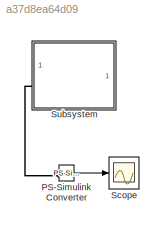
MODEL slx_a37d8ea64d09
KIND model
CONFIG AbsTol = auto
CONFIG EnableMultiTasking = off
CONFIG FixedStep = auto
CONFIG MaxStep = auto
CONFIG MinStep = auto
CONFIG RelTol = 1e-3
CONFIG SampleTimeConstraint = Unconstrained
CONFIG SolverName = VariableStepAuto
CONFIG StartTime = 0.0
CONFIG StopTime = 10
BLOCK [Reference] PS-Simulink Converter  REF=nesl_utility/PS-Simulink
Converter
  SourceBlock = nesl_utility/PS-Simulink\nConverter
  SourceType = PS-Simulink\nConverter
BLOCK [Scope] Scope
  Floating = off
  NumInputPorts = 1
  ScopeSpecificationString = Simulink.scopes.TimeScopeBlockCfg('CurrentConfiguration', extmgr.ConfigurationSet(extmgr.Configuration('Core','General UI',true),extmgr.Configuration('Core','Source UI',true),extmgr.Configuration('Sources','WiredSimulink',true),extmgr.Configuration('Visuals','Time Domain',true,'SerializedDisplays',{struct('MinYLimReal','-171.94598','MaxYLimReal','1541.39685','YLabelReal','','MinYLimMag',' 0.00000'...<+1532ch>
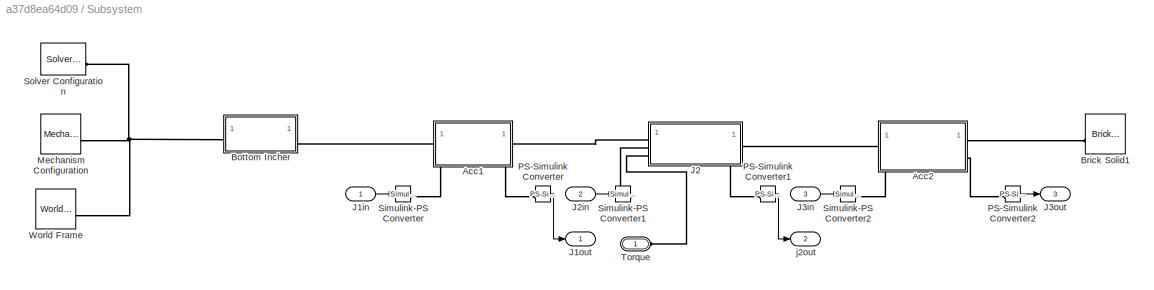
BLOCK [SubSystem] Subsystem
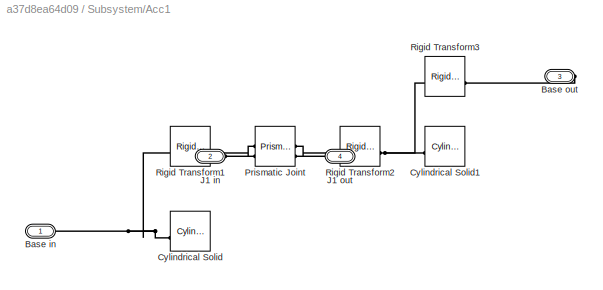
BLOCK [SubSystem] Subsystem/Acc1
BLOCK [PMIOPort] Subsystem/Acc1/Base in
  Side = Left
BLOCK [PMIOPort] Subsystem/Acc1/Base out
  Port = 3
  Side = Right
BLOCK [Reference] Subsystem/Acc1/Cylindrical Solid  REF=sm_lib/Body Elements/Cylindrical Solid
  NameLocation = top
  SourceBlock = sm_lib/Body Elements/Cylindrical Solid
  SourceType = Cylindrical Solid
BLOCK [Reference] Subsystem/Acc1/Cylindrical Solid1  REF=sm_lib/Body Elements/Cylindrical Solid
  NameLocation = top
  SourceBlock = sm_lib/Body Elements/Cylindrical Solid
  SourceType = Cylindrical Solid
BLOCK [PMIOPort] Subsystem/Acc1/J1 in
  Port = 2
  Side = Left
BLOCK [PMIOPort] Subsystem/Acc1/J1 out
  Port = 4
  Side = Right
BLOCK [Reference] Subsystem/Acc1/Prismatic Joint  REF=sm_lib/Joints/Prismatic
Joint
  SourceBlock = sm_lib/Joints/Prismatic\nJoint
  SourceType = Prismatic\nJoint
BLOCK [Reference] Subsystem/Acc1/Rigid Transform1  REF=sm_lib/Frames and
Transforms/Rigid
Transform
  SourceBlock = sm_lib/Frames and\nTransforms/Rigid\nTransform
  SourceType = Rigid\nTransform
BLOCK [Reference] Subsystem/Acc1/Rigid Transform2  REF=sm_lib/Frames and
Transforms/Rigid
Transform
  SourceBlock = sm_lib/Frames and\nTransforms/Rigid\nTransform
  SourceType = Rigid\nTransform
BLOCK [Reference] Subsystem/Acc1/Rigid Transform3  REF=sm_lib/Frames and
Transforms/Rigid
Transform
  SourceBlock = sm_lib/Frames and\nTransforms/Rigid\nTransform
  SourceType = Rigid\nTransform
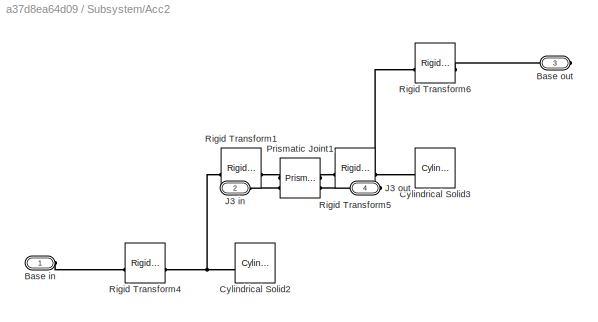
BLOCK [SubSystem] Subsystem/Acc2
BLOCK [PMIOPort] Subsystem/Acc2/Base in
  Side = Left
BLOCK [PMIOPort] Subsystem/Acc2/Base out
  Port = 3
  Side = Right
BLOCK [Reference] Subsystem/Acc2/Cylindrical Solid2  REF=sm_lib/Body Elements/Cylindrical Solid
  NameLocation = top
  SourceBlock = sm_lib/Body Elements/Cylindrical Solid
  SourceType = Cylindrical Solid
BLOCK [Reference] Subsystem/Acc2/Cylindrical Solid3  REF=sm_lib/Body Elements/Cylindrical Solid
  NameLocation = top
  SourceBlock = sm_lib/Body Elements/Cylindrical Solid
  SourceType = Cylindrical Solid
BLOCK [PMIOPort] Subsystem/Acc2/J3 in
  Port = 2
  Side = Left
BLOCK [PMIOPort] Subsystem/Acc2/J3 out
  Port = 4
  Side = Right
BLOCK [Reference] Subsystem/Acc2/Prismatic Joint1  REF=sm_lib/Joints/Prismatic
Joint
  SourceBlock = sm_lib/Joints/Prismatic\nJoint
  SourceType = Prismatic\nJoint
BLOCK [Reference] Subsystem/Acc2/Rigid Transform1  REF=sm_lib/Frames and
Transforms/Rigid
Transform
  SourceBlock = sm_lib/Frames and\nTransforms/Rigid\nTransform
  SourceType = Rigid\nTransform
BLOCK [Reference] Subsystem/Acc2/Rigid Transform4  REF=sm_lib/Frames and
Transforms/Rigid
Transform
  SourceBlock = sm_lib/Frames and\nTransforms/Rigid\nTransform
  SourceType = Rigid\nTransform
BLOCK [Reference] Subsystem/Acc2/Rigid Transform5  REF=sm_lib/Frames and
Transforms/Rigid
Transform
  SourceBlock = sm_lib/Frames and\nTransforms/Rigid\nTransform
  SourceType = Rigid\nTransform
BLOCK [Reference] Subsystem/Acc2/Rigid Transform6  REF=sm_lib/Frames and
Transforms/Rigid
Transform
  SourceBlock = sm_lib/Frames and\nTransforms/Rigid\nTransform
  SourceType = Rigid\nTransform
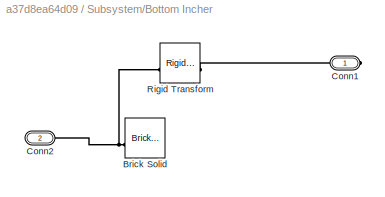
BLOCK [SubSystem] Subsystem/Bottom Incher
BLOCK [Reference] Subsystem/Bottom Incher/Brick Solid  REF=sm_lib/Body Elements/Brick Solid
  NameLocation = top
  SourceBlock = sm_lib/Body Elements/Brick Solid
  SourceType = Brick Solid
BLOCK [PMIOPort] Subsystem/Bottom Incher/Conn1
  Side = Right
BLOCK [PMIOPort] Subsystem/Bottom Incher/Conn2
  Port = 2
  Side = Left
BLOCK [Reference] Subsystem/Bottom Incher/Rigid Transform  REF=sm_lib/Frames and
Transforms/Rigid
Transform
  SourceBlock = sm_lib/Frames and\nTransforms/Rigid\nTransform
  SourceType = Rigid\nTransform
BLOCK [Reference] Subsystem/Brick Solid1  REF=sm_lib/Body Elements/Brick Solid
  NameLocation = top
  SourceBlock = sm_lib/Body Elements/Brick Solid
  SourceType = Brick Solid
BLOCK [Inport] Subsystem/J1in
BLOCK [Outport] Subsystem/J1out
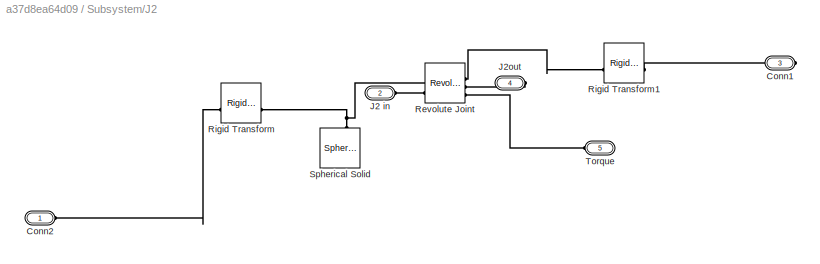
BLOCK [SubSystem] Subsystem/J2
BLOCK [PMIOPort] Subsystem/J2/Conn1
  Port = 3
  Side = Right
BLOCK [PMIOPort] Subsystem/J2/Conn2
  Side = Left
BLOCK [PMIOPort] Subsystem/J2/J2 in
  Port = 2
  Side = Left
BLOCK [PMIOPort] Subsystem/J2/J2out
  NameLocation = top
  Port = 4
  Side = Right
BLOCK [Reference] Subsystem/J2/Revolute Joint  REF=sm_lib/Joints/Revolute Joint
  SourceBlock = sm_lib/Joints/Revolute Joint
  SourceType = Revolute Joint
BLOCK [Reference] Subsystem/J2/Rigid Transform  REF=sm_lib/Frames and
Transforms/Rigid
Transform
  SourceBlock = sm_lib/Frames and\nTransforms/Rigid\nTransform
  SourceType = Rigid\nTransform
BLOCK [Reference] Subsystem/J2/Rigid Transform1  REF=sm_lib/Frames and
Transforms/Rigid
Transform
  SourceBlock = sm_lib/Frames and\nTransforms/Rigid\nTransform
  SourceType = Rigid\nTransform
BLOCK [Reference] Subsystem/J2/Spherical Solid  REF=sm_lib/Body Elements/Spherical Solid
  NameLocation = right
  SourceBlock = sm_lib/Body Elements/Spherical Solid
  SourceType = Spherical Solid
BLOCK [PMIOPort] Subsystem/J2/Torque
  NameLocation = top
  Port = 5
  Side = Left
BLOCK [Inport] Subsystem/J2in
  Port = 2
BLOCK [Inport] Subsystem/J3in
  Port = 3
BLOCK [Outport] Subsystem/J3out
  Port = 3
BLOCK [Reference] Subsystem/Mechanism Configuration  REF=sm_lib/Utilities/Mechanism
Configuration
  SourceBlock = sm_lib/Utilities/Mechanism\nConfiguration
  SourceType = Mechanism\nConfiguration
BLOCK [Reference] Subsystem/PS-Simulink Converter  REF=nesl_utility/PS-Simulink
Converter
  SourceBlock = nesl_utility/PS-Simulink\nConverter
  SourceType = PS-Simulink\nConverter
BLOCK [Reference] Subsystem/PS-Simulink Converter1  REF=nesl_utility/PS-Simulink
Converter
  SourceBlock = nesl_utility/PS-Simulink\nConverter
  SourceType = PS-Simulink\nConverter
BLOCK [Reference] Subsystem/PS-Simulink Converter2  REF=nesl_utility/PS-Simulink
Converter
  SourceBlock = nesl_utility/PS-Simulink\nConverter
  SourceType = PS-Simulink\nConverter
BLOCK [Reference] Subsystem/Simulink-PS Converter  REF=nesl_utility/Simulink-PS
Converter
  SourceBlock = nesl_utility/Simulink-PS\nConverter
  SourceType = Simulink-PS\nConverter
BLOCK [Reference] Subsystem/Simulink-PS Converter1  REF=nesl_utility/Simulink-PS
Converter
  SourceBlock = nesl_utility/Simulink-PS\nConverter
  SourceType = Simulink-PS\nConverter
BLOCK [Reference] Subsystem/Simulink-PS Converter2  REF=nesl_utility/Simulink-PS
Converter
  SourceBlock = nesl_utility/Simulink-PS\nConverter
  SourceType = Simulink-PS\nConverter
BLOCK [Reference] Subsystem/Solver Configuration  REF=nesl_utility/Solver
Configuration
  SourceBlock = nesl_utility/Solver\nConfiguration
  SourceType = Solver\nConfiguration
BLOCK [PMIOPort] Subsystem/Torque
  Side = Left
BLOCK [Reference] Subsystem/World Frame  REF=sm_lib/Frames and
Transforms/World Frame
  SourceBlock = sm_lib/Frames and\nTransforms/World Frame
  SourceType = World Frame
BLOCK [Outport] Subsystem/j2out
  Port = 2
LINE PS-Simulink Converter:1 -> Scope:1
LINE Subsystem/J1in:1 -> Subsystem/Simulink-PS Converter:1
LINE Subsystem/J2in:1 -> Subsystem/Simulink-PS Converter1:1
LINE Subsystem/J3in:1 -> Subsystem/Simulink-PS Converter2:1
LINE Subsystem/PS-Simulink Converter1:1 -> Subsystem/j2out:1
LINE Subsystem/PS-Simulink Converter2:1 -> Subsystem/J3out:1
LINE Subsystem/PS-Simulink Converter:1 -> Subsystem/J1out:1
PLINE PS-Simulink Converter:LConn1 -- Subsystem:LConn1
PNET net1: Subsystem/Acc1/Base in:RConn1 -- Subsystem/Acc1/Cylindrical Solid:RConn1 -- Subsystem/Acc1/Rigid Transform1:LConn1
PLINE Subsystem/Acc1/Base out:RConn1 -- Subsystem/Acc1/Rigid Transform3:RConn1
PNET net2: Subsystem/Acc1/Cylindrical Solid1:RConn1 -- Subsystem/Acc1/Rigid Transform2:RConn1 -- Subsystem/Acc1/Rigid Transform3:LConn1
PLINE Subsystem/Acc1/J1 in:RConn1 -- Subsystem/Acc1/Prismatic Joint:LConn2
PLINE Subsystem/Acc1/J1 out:RConn1 -- Subsystem/Acc1/Prismatic Joint:RConn2
PLINE Subsystem/Acc1/Prismatic Joint:LConn1 -- Subsystem/Acc1/Rigid Transform1:RConn1
PLINE Subsystem/Acc1/Prismatic Joint:RConn1 -- Subsystem/Acc1/Rigid Transform2:LConn1
PLINE Subsystem/Acc1:LConn1 -- Subsystem/Bottom Incher:RConn1
PLINE Subsystem/Acc1:LConn2 -- Subsystem/Simulink-PS Converter:RConn1
PLINE Subsystem/Acc1:RConn1 -- Subsystem/J2:LConn1
PLINE Subsystem/Acc1:RConn2 -- Subsystem/PS-Simulink Converter:LConn1
PLINE Subsystem/Acc2/Base in:RConn1 -- Subsystem/Acc2/Rigid Transform4:LConn1
PLINE Subsystem/Acc2/Base out:RConn1 -- Subsystem/Acc2/Rigid Transform6:RConn1
PNET net3: Subsystem/Acc2/Cylindrical Solid2:RConn1 -- Subsystem/Acc2/Rigid Transform1:LConn1 -- Subsystem/Acc2/Rigid Transform4:RConn1
PNET net4: Subsystem/Acc2/Cylindrical Solid3:RConn1 -- Subsystem/Acc2/Rigid Transform5:RConn1 -- Subsystem/Acc2/Rigid Transform6:LConn1
PLINE Subsystem/Acc2/J3 in:RConn1 -- Subsystem/Acc2/Prismatic Joint1:LConn2
PLINE Subsystem/Acc2/J3 out:RConn1 -- Subsystem/Acc2/Prismatic Joint1:RConn2
PLINE Subsystem/Acc2/Prismatic Joint1:LConn1 -- Subsystem/Acc2/Rigid Transform1:RConn1
PLINE Subsystem/Acc2/Prismatic Joint1:RConn1 -- Subsystem/Acc2/Rigid Transform5:LConn1
PLINE Subsystem/Acc2:LConn1 -- Subsystem/J2:RConn1
PLINE Subsystem/Acc2:LConn2 -- Subsystem/Simulink-PS Converter2:RConn1
PLINE Subsystem/Acc2:RConn1 -- Subsystem/Brick Solid1:RConn1
PLINE Subsystem/Acc2:RConn2 -- Subsystem/PS-Simulink Converter2:LConn1
PNET net5: Subsystem/Bottom Incher/Brick Solid:RConn1 -- Subsystem/Bottom Incher/Conn2:RConn1 -- Subsystem/Bottom Incher/Rigid Transform:LConn1
PLINE Subsystem/Bottom Incher/Conn1:RConn1 -- Subsystem/Bottom Incher/Rigid Transform:RConn1
PNET net6: Subsystem/Bottom Incher:LConn1 -- Subsystem/Mechanism Configuration:RConn1 -- Subsystem/Solver Configuration:RConn1 -- Subsystem/World Frame:RConn1
PLINE Subsystem/J2/Conn1:RConn1 -- Subsystem/J2/Rigid Transform1:RConn1
PLINE Subsystem/J2/Conn2:RConn1 -- Subsystem/J2/Rigid Transform:LConn1
PLINE Subsystem/J2/J2 in:RConn1 -- Subsystem/J2/Revolute Joint:LConn2
PLINE Subsystem/J2/J2out:RConn1 -- Subsystem/J2/Revolute Joint:RConn2
PNET net7: Subsystem/J2/Revolute Joint:LConn1 -- Subsystem/J2/Rigid Transform:RConn1 -- Subsystem/J2/Spherical Solid:RConn1
PLINE Subsystem/J2/Revolute Joint:RConn1 -- Subsystem/J2/Rigid Transform1:LConn1
PLINE Subsystem/J2/Revolute Joint:RConn3 -- Subsystem/J2/Torque:RConn1
PLINE Subsystem/J2:LConn2 -- Subsystem/Simulink-PS Converter1:RConn1
PLINE Subsystem/J2:LConn3 -- Subsystem/Torque:RConn1
PLINE Subsystem/J2:RConn2 -- Subsystem/PS-Simulink Converter1:LConn1
note: PNET lines group multi-terminal physical nets as a canonical sorted terminal list (undirected conserving connections); 2-terminal nets keep the pairwise PLINE form
